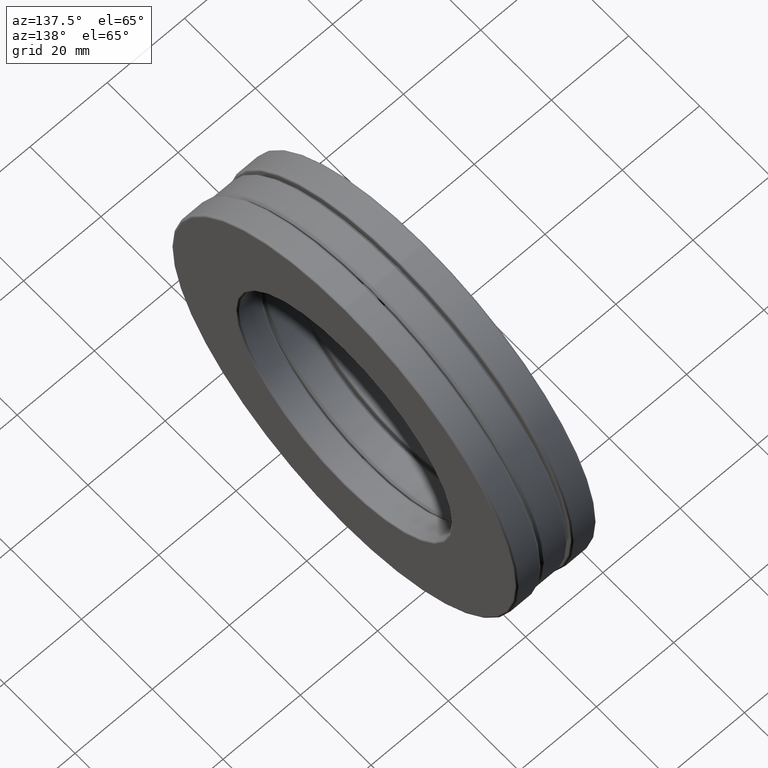
[diagram: clean part render]
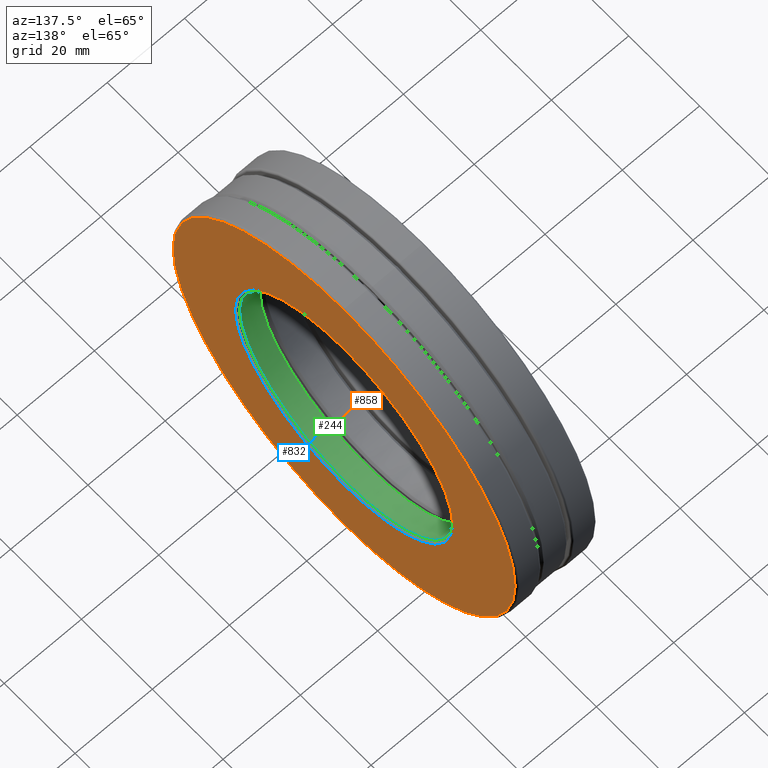
[diagram: same view with three faces highlighted in distinct colors, each labeled with its STEP entity id]
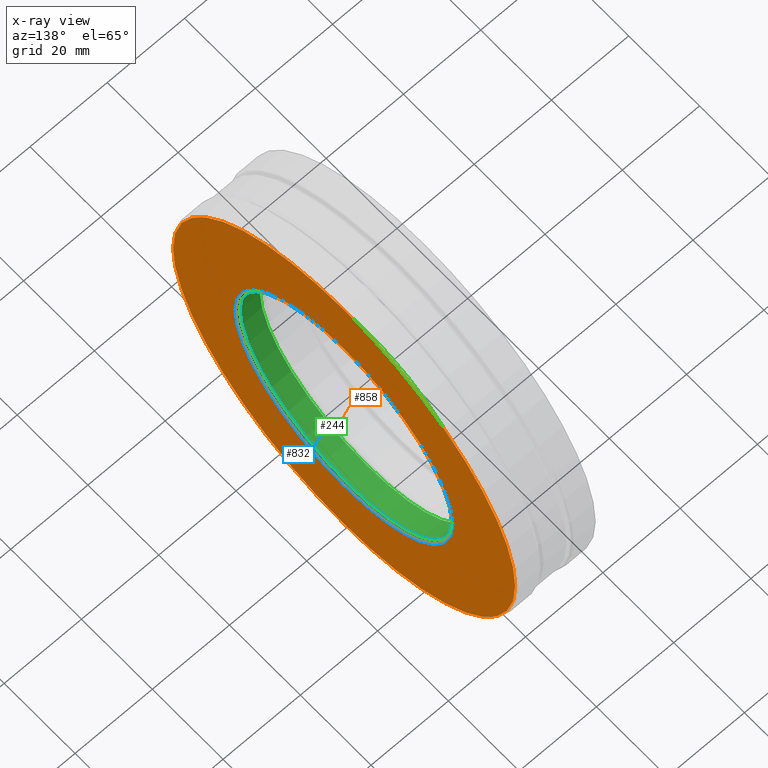
[diagram: x-ray of the same camera — body ghosted, the three highlighted faces saturated]
A machine part, auxiliary view with three faces highlighted in distinct colors.
The next image is the same camera in x-ray (body ghosted, the three faces saturated) — at least one of them is partly hidden behind the body in this view.
Their STEP definitions:

[orange] entity #858 — the highlighted planar face has unit normal (1, 0, 0).
#12 = ORIENTED_EDGE ( 'NONE', *, *, #1060, .T. ) ;
#25 = EDGE_LOOP ( 'NONE', ( #763 ) ) ;
#63 = VERTEX_POINT ( 'NONE', #1188 ) ;
#98 = FACE_OUTER_BOUND ( 'NONE', #25, .T. ) ;
#100 = VERTEX_POINT ( 'NONE', #1409 ) ;
#146 = CARTESIAN_POINT ( 'NONE',  ( 0.4060000000000001400, 0.0000000000000000000, 0.0000000000000000000 ) ) ;
#245 = CIRCLE ( 'NONE', #699, 1.207500000000000000 ) ;
#523 = DIRECTION ( 'NONE',  ( 0.0000000000000000000, 0.0000000000000000000, 1.000000000000000000 ) ) ;
#531 = CARTESIAN_POINT ( 'NONE',  ( 0.4060000000000001400, 0.0000000000000000000, 0.0000000000000000000 ) ) ;
#606 = DIRECTION ( 'NONE',  ( -1.000000000000000000, -0.0000000000000000000, -0.0000000000000000000 ) ) ;
#653 = AXIS2_PLACEMENT_3D ( 'NONE', #146, #916, #1468 ) ;
#699 = AXIS2_PLACEMENT_3D ( 'NONE', #1301, #606, #523 ) ;
#721 = PLANE ( 'NONE',  #653 ) ;
#735 = CIRCLE ( 'NONE', #1470, 1.901875000000000600 ) ;
#763 = ORIENTED_EDGE ( 'NONE', *, *, #1241, .F. ) ;
#858 = ADVANCED_FACE ( 'NONE', ( #1015, #98 ), #721, .T. ) ;
#861 = DIRECTION ( 'NONE',  ( -1.000000000000000000, -0.0000000000000000000, -0.0000000000000000000 ) ) ;
#916 = DIRECTION ( 'NONE',  ( 1.000000000000000000, 0.0000000000000000000, 0.0000000000000000000 ) ) ;
#1015 = FACE_BOUND ( 'NONE', #1294, .T. ) ;
#1060 = EDGE_CURVE ( 'NONE', #100, #100, #245, .T. ) ;
#1188 = CARTESIAN_POINT ( 'NONE',  ( 0.4060000000000001400, 0.0000000000000000000, 1.901875000000000600 ) ) ;
#1241 = EDGE_CURVE ( 'NONE', #63, #63, #735, .T. ) ;
#1294 = EDGE_LOOP ( 'NONE', ( #12 ) ) ;
#1301 = CARTESIAN_POINT ( 'NONE',  ( 0.4060000000000001400, 0.0000000000000000000, 0.0000000000000000000 ) ) ;
#1322 = DIRECTION ( 'NONE',  ( 0.0000000000000000000, 0.0000000000000000000, 1.000000000000000000 ) ) ;
#1409 = CARTESIAN_POINT ( 'NONE',  ( 0.4060000000000001400, 0.0000000000000000000, 1.207500000000000000 ) ) ;
#1468 = DIRECTION ( 'NONE',  ( 0.0000000000000000000, 0.0000000000000000000, -1.000000000000000000 ) ) ;
#1470 = AXIS2_PLACEMENT_3D ( 'NONE', #531, #861, #1322 ) ;

[blue] entity #832 — the highlighted toroidal blend (fillet) surface has major radius 30.6705 mm and minor (blend) radius 0.508 mm.
#43 = EDGE_LOOP ( 'NONE', ( #1161 ) ) ;
#100 = VERTEX_POINT ( 'NONE', #1409 ) ;
#107 = AXIS2_PLACEMENT_3D ( 'NONE', #117, #1466, #801 ) ;
#117 = CARTESIAN_POINT ( 'NONE',  ( 0.3860000000000000700, 0.0000000000000000000, 0.0000000000000000000 ) ) ;
#134 = TOROIDAL_SURFACE ( 'NONE', #107, 1.207500000000000000, 0.02000000000000005900 ) ;
#177 = FACE_OUTER_BOUND ( 'NONE', #43, .T. ) ;
#245 = CIRCLE ( 'NONE', #699, 1.207500000000000000 ) ;
#341 = ORIENTED_EDGE ( 'NONE', *, *, #1060, .F. ) ;
#479 = FACE_OUTER_BOUND ( 'NONE', #1135, .T. ) ;
#523 = DIRECTION ( 'NONE',  ( 0.0000000000000000000, 0.0000000000000000000, 1.000000000000000000 ) ) ;
#606 = DIRECTION ( 'NONE',  ( -1.000000000000000000, -0.0000000000000000000, -0.0000000000000000000 ) ) ;
#613 = AXIS2_PLACEMENT_3D ( 'NONE', #1371, #1142, #921 ) ;
#699 = AXIS2_PLACEMENT_3D ( 'NONE', #1301, #606, #523 ) ;
#801 = DIRECTION ( 'NONE',  ( 0.0000000000000000000, 0.0000000000000000000, 1.000000000000000000 ) ) ;
#832 = ADVANCED_FACE ( 'NONE', ( #479, #177 ), #134, .T. ) ;
#848 = CARTESIAN_POINT ( 'NONE',  ( 0.3860000000000000700, 0.0000000000000000000, 1.187500000000000000 ) ) ;
#874 = EDGE_CURVE ( 'NONE', #1271, #1271, #1381, .T. ) ;
#921 = DIRECTION ( 'NONE',  ( 0.0000000000000000000, 0.0000000000000000000, 1.000000000000000000 ) ) ;
#1060 = EDGE_CURVE ( 'NONE', #100, #100, #245, .T. ) ;
#1135 = EDGE_LOOP ( 'NONE', ( #341 ) ) ;
#1142 = DIRECTION ( 'NONE',  ( -1.000000000000000000, -0.0000000000000000000, -0.0000000000000000000 ) ) ;
#1161 = ORIENTED_EDGE ( 'NONE', *, *, #874, .T. ) ;
#1271 = VERTEX_POINT ( 'NONE', #848 ) ;
#1301 = CARTESIAN_POINT ( 'NONE',  ( 0.4060000000000001400, 0.0000000000000000000, 0.0000000000000000000 ) ) ;
#1371 = CARTESIAN_POINT ( 'NONE',  ( 0.3860000000000000700, 0.0000000000000000000, 0.0000000000000000000 ) ) ;
#1381 = CIRCLE ( 'NONE', #613, 1.187500000000000000 ) ;
#1409 = CARTESIAN_POINT ( 'NONE',  ( 0.4060000000000001400, 0.0000000000000000000, 1.207500000000000000 ) ) ;
#1466 = DIRECTION ( 'NONE',  ( -1.000000000000000000, -0.0000000000000000000, -0.0000000000000000000 ) ) ;

[green] entity #244 — the highlighted cylindrical surface (bore or boss wall) has radius 30.1625 mm, axis along (-1, -0, -0).
#36 = FACE_OUTER_BOUND ( 'NONE', #1205, .T. ) ;
#37 = DIRECTION ( 'NONE',  ( -1.000000000000000000, -0.0000000000000000000, -0.0000000000000000000 ) ) ;
#57 = AXIS2_PLACEMENT_3D ( 'NONE', #139, #37, #488 ) ;
#121 = CIRCLE ( 'NONE', #954, 1.187500000000000000 ) ;
#139 = CARTESIAN_POINT ( 'NONE',  ( 0.0000000000000000000, 0.0000000000000000000, 0.0000000000000000000 ) ) ;
#154 = DIRECTION ( 'NONE',  ( 0.0000000000000000000, 0.0000000000000000000, 1.000000000000000000 ) ) ;
#176 = ORIENTED_EDGE ( 'NONE', *, *, #991, .T. ) ;
#244 = ADVANCED_FACE ( 'NONE', ( #347, #36 ), #317, .F. ) ;
#317 = CYLINDRICAL_SURFACE ( 'NONE', #57, 1.187500000000000000 ) ;
#347 = FACE_OUTER_BOUND ( 'NONE', #1029, .T. ) ;
#367 = ORIENTED_EDGE ( 'NONE', *, *, #874, .F. ) ;
#488 = DIRECTION ( 'NONE',  ( 0.0000000000000000000, 0.0000000000000000000, 1.000000000000000000 ) ) ;
#613 = AXIS2_PLACEMENT_3D ( 'NONE', #1371, #1142, #921 ) ;
#729 = DIRECTION ( 'NONE',  ( -1.000000000000000000, -0.0000000000000000000, -0.0000000000000000000 ) ) ;
#737 = CARTESIAN_POINT ( 'NONE',  ( 0.1760000000000000500, 0.0000000000000000000, 0.0000000000000000000 ) ) ;
#827 = VERTEX_POINT ( 'NONE', #872 ) ;
#848 = CARTESIAN_POINT ( 'NONE',  ( 0.3860000000000000700, 0.0000000000000000000, 1.187500000000000000 ) ) ;
#872 = CARTESIAN_POINT ( 'NONE',  ( 0.1760000000000000500, 0.0000000000000000000, 1.187500000000000000 ) ) ;
#874 = EDGE_CURVE ( 'NONE', #1271, #1271, #1381, .T. ) ;
#921 = DIRECTION ( 'NONE',  ( 0.0000000000000000000, 0.0000000000000000000, 1.000000000000000000 ) ) ;
#954 = AXIS2_PLACEMENT_3D ( 'NONE', #737, #729, #154 ) ;
#991 = EDGE_CURVE ( 'NONE', #827, #827, #121, .T. ) ;
#1029 = EDGE_LOOP ( 'NONE', ( #176 ) ) ;
#1142 = DIRECTION ( 'NONE',  ( -1.000000000000000000, -0.0000000000000000000, -0.0000000000000000000 ) ) ;
#1205 = EDGE_LOOP ( 'NONE', ( #367 ) ) ;
#1271 = VERTEX_POINT ( 'NONE', #848 ) ;
#1371 = CARTESIAN_POINT ( 'NONE',  ( 0.3860000000000000700, 0.0000000000000000000, 0.0000000000000000000 ) ) ;
#1381 = CIRCLE ( 'NONE', #613, 1.187500000000000000 ) ;